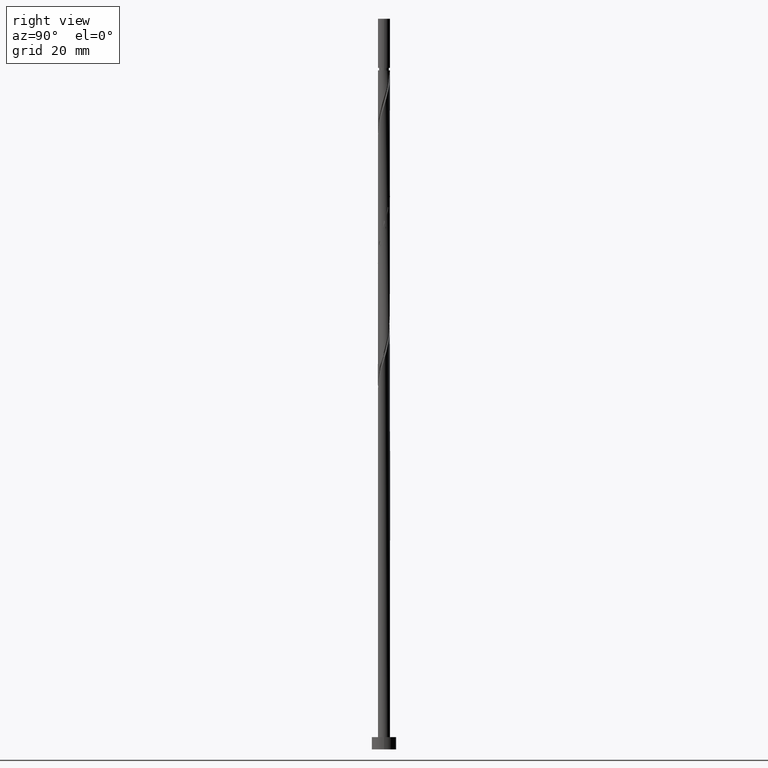
[diagram: clean part render]
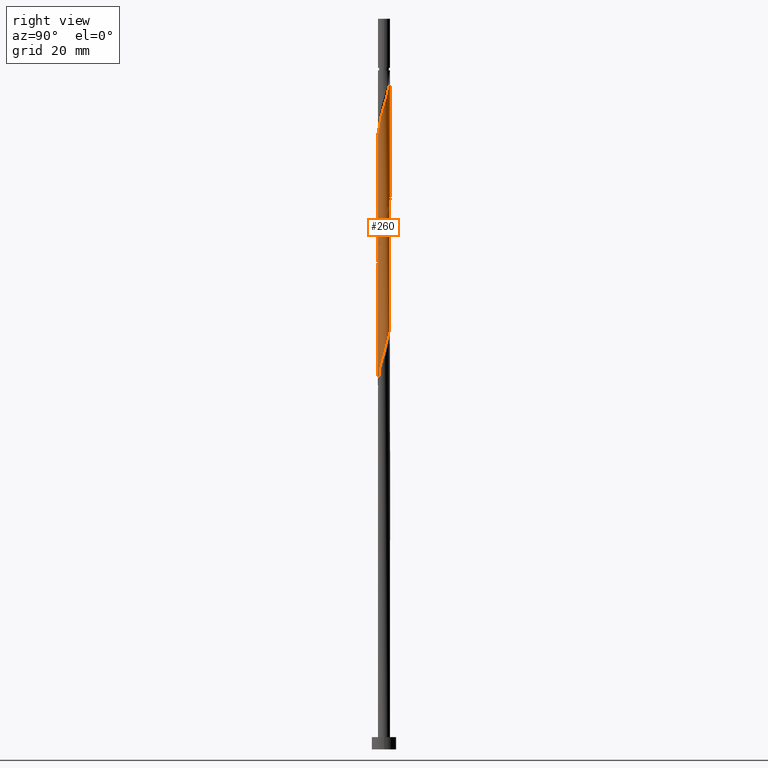
[diagram: same view with one face highlighted and labeled with its STEP entity id]
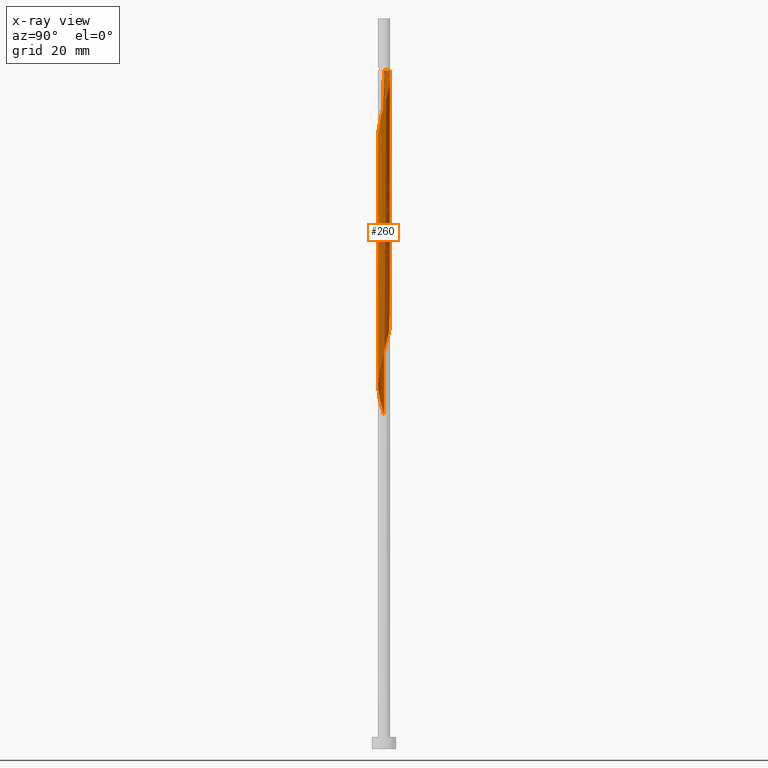
[diagram: x-ray of the same camera — body ghosted, the highlighted face saturated]
A machine part, right view. The second image highlights one B-rep face of the part: STEP entity #260.
The next image is the same camera in x-ray: the body ghosted, the highlighted face saturated — about 0% of this face is hidden behind the body in this view.
In plain terms, the highlighted cylindrical surface (bore or boss wall) has radius 1 mm, axis along (-0, -0, -1).
Its self-contained STEP definition (entity closure, byte-faithful):
#10 = EDGE_CURVE ( 'NONE', #894, #1417, #929, .T. ) ;
#11 = CARTESIAN_POINT ( 'NONE',  ( -0.5591360655683673686, 0.8440690085044264546, 72.49748367555909567 ) ) ;
#15 = CARTESIAN_POINT ( 'NONE',  ( -0.1989974874213231160, 0.9799999999999986500, 111.5599836755590388 ) ) ;
#16 = CARTESIAN_POINT ( 'NONE',  ( -0.4150371980848591158, -0.9098044428369606029, 99.05998367555905304 ) ) ;
#22 = CARTESIAN_POINT ( 'NONE',  ( -0.9484818943287861570, -0.3542142389393692636, 96.45581700889233900 ) ) ;
#25 = CARTESIAN_POINT ( 'NONE',  ( -0.8705417805181480118, 0.4920945116258615970, 74.05998367555908146 ) ) ;
#31 = CARTESIAN_POINT ( 'NONE',  ( 0.6299747843123535418, -0.7926016667075098665, 102.7058170088923532 ) ) ;
#38 = CARTESIAN_POINT ( 'NONE',  ( 0.6758688661379389506, 0.7370218964083899982, 108.4349836755590673 ) ) ;
#41 = CARTESIAN_POINT ( 'NONE',  ( -0.04378073590327794667, -1.011518105671216805, 80.83081700889236743 ) ) ;
#46 = CARTESIAN_POINT ( 'NONE',  ( -0.8440690085044264546, -0.5591360655683673686, 56.87248367555904593 ) ) ;
#48 = CARTESIAN_POINT ( 'NONE',  ( -1.000000000000001332, 1.799172333984669435E-16, 95.27018123408876704 ) ) ;
#70 = EDGE_CURVE ( 'NONE', #894, #650, #1370, .T. ) ;
#73 = ORIENTED_EDGE ( 'NONE', *, *, #138, .T. ) ;
#74 = CARTESIAN_POINT ( 'NONE',  ( -1.000000000000001554, 4.647861862793789565E-16, 54.93311945036264632 ) ) ;
#93 = CARTESIAN_POINT ( 'NONE',  ( 0.1989974874213238099, 0.9800000000000013145, 90.72665034222572444 ) ) ;
#121 = CARTESIAN_POINT ( 'NONE',  ( 0.1135787973490361563, -0.9935289914203557782, 81.35165034222572444 ) ) ;
#127 = CARTESIAN_POINT ( 'NONE',  ( 0.04378073590327780790, 1.011518105671216805, 70.41415034222571023 ) ) ;
#133 = CARTESIAN_POINT ( 'NONE',  ( 0.3542142389393692081, -0.9484818943287861570, 101.6641503422256818 ) ) ;
#138 = EDGE_CURVE ( 'NONE', #556, #308, #907, .T. ) ;
#139 = CARTESIAN_POINT ( 'NONE',  ( -0.6299747843123536528, -0.7926016667075100885, 78.74748367555903883 ) ) ;
#143 = CARTESIAN_POINT ( 'NONE',  ( 1.000000000000000000, 1.224646799147353207E-16, 120.0499999999999972 ) ) ;
#146 = CARTESIAN_POINT ( 'NONE',  ( 1.000000000000000888, -0.1005037815259241796, 85.84881487495476904 ) ) ;
#153 = CARTESIAN_POINT ( 'NONE',  ( -0.7926016667075100885, 0.6299747843123535418, 73.53915034222572444 ) ) ;
#161 = CARTESIAN_POINT ( 'NONE',  ( -0.9098044428369604919, -0.4150371980848587827, 56.35165034222571734 ) ) ;
#174 = ORIENTED_EDGE ( 'NONE', *, *, #541, .T. ) ;
#175 = VECTOR ( 'NONE', #367, 1000.000000000000000 ) ;
#197 = CARTESIAN_POINT ( 'NONE',  ( 0.3542142389393695412, 0.9484818943287857129, 90.20581700889239585 ) ) ;
#198 = ORIENTED_EDGE ( 'NONE', *, *, #70, .T. ) ;
#213 = CARTESIAN_POINT ( 'NONE',  ( 0.6299747843123538749, 0.7926016667075100885, 89.16415034222572444 ) ) ;
#226 = CARTESIAN_POINT ( 'NONE',  ( -0.5591360655683673686, 0.8440690085044264546, 93.33081700889235321 ) ) ;
#241 = CARTESIAN_POINT ( 'NONE',  ( 0.04378073590327762749, -1.011518105671216139, 100.6224836755590388 ) ) ;
#243 = CARTESIAN_POINT ( 'NONE',  ( 0.9484818943287857129, -0.3542142389393694857, 84.99748367555903883 ) ) ;
#249 = CARTESIAN_POINT ( 'NONE',  ( -1.000000000000000888, -0.1005037815259239159, 95.60448580949662301 ) ) ;
#252 = CARTESIAN_POINT ( 'NONE',  ( 0.7370218964083901092, 0.6758688661379386176, 67.80998367555905304 ) ) ;
#258 = CARTESIAN_POINT ( 'NONE',  ( 0.4150371980848592268, 0.9098044428369607139, 109.4766503422257102 ) ) ;
#260 = ADVANCED_FACE ( 'NONE', ( #1307 ), #1391, .T. ) ;
#265 = CARTESIAN_POINT ( 'NONE',  ( -0.1135787973490363922, -0.9935289914203560002, 100.1016503422257102 ) ) ;
#268 = CARTESIAN_POINT ( 'NONE',  ( 0.6758688661379386176, -0.7370218964083901092, 83.43498367555906725 ) ) ;
#271 = CARTESIAN_POINT ( 'NONE',  ( -1.000000000000000000, 0.000000000000000000, 120.0499999999999972 ) ) ;
#273 = CARTESIAN_POINT ( 'NONE',  ( -0.1989974874213237266, -0.9800000000000013145, 59.47665034222571734 ) ) ;
#298 = DIRECTION ( 'NONE',  ( -1.000000000000000000, 0.000000000000000000, 0.000000000000000000 ) ) ;
#301 = VERTEX_POINT ( 'NONE', #852 ) ;
#307 = CARTESIAN_POINT ( 'NONE',  ( 0.9098044428369607139, 0.4150371980848586717, 87.60165034222572444 ) ) ;
#308 = VERTEX_POINT ( 'NONE', #633 ) ;
#348 = CARTESIAN_POINT ( 'NONE',  ( 0.000000000000000000, 0.000000000000000000, 111.5599836755590388 ) ) ;
#350 = CARTESIAN_POINT ( 'NONE',  ( 1.000000000000001776, 0.05697373744643013938, 86.37263053956992565 ) ) ;
#360 = CARTESIAN_POINT ( 'NONE',  ( 0.6299747843123538749, 0.7926016667075100885, 68.33081700889239585 ) ) ;
#366 = CARTESIAN_POINT ( 'NONE',  ( 0.9935289914203555561, 0.1135787973490360869, 86.55998367555905304 ) ) ;
#367 = DIRECTION ( 'NONE',  ( -0.000000000000000000, -0.000000000000000000, -1.000000000000000000 ) ) ;
#376 = CARTESIAN_POINT ( 'NONE',  ( -0.9755398771694944182, -0.2709383306013502524, 76.66415034222571023 ) ) ;
#379 = CARTESIAN_POINT ( 'NONE',  ( 0.4920945116258615970, -0.8705417805181484558, 102.1849836755590673 ) ) ;
#401 = CARTESIAN_POINT ( 'NONE',  ( 0.9800000000000013145, -0.1989974874213237821, 64.68498367555903883 ) ) ;
#410 = CARTESIAN_POINT ( 'NONE',  ( -0.3542142389393694302, -0.9484818943287857129, 58.95581700889237453 ) ) ;
#431 = CARTESIAN_POINT ( 'NONE',  ( -0.9484818943287859350, 0.3542142389393693747, 95.41415034222572444 ) ) ;
#438 = CARTESIAN_POINT ( 'NONE',  ( 0.9755398771694946403, 0.2709383306013500858, 87.08081700889239585 ) ) ;
#449 = ORIENTED_EDGE ( 'NONE', *, *, #10, .F. ) ;
#470 = LINE ( 'NONE', #1049, #1099 ) ;
#474 = CARTESIAN_POINT ( 'NONE',  ( 0.8705417805181484558, 0.4920945116258615970, 107.3933170088924101 ) ) ;
#476 = CARTESIAN_POINT ( 'NONE',  ( -0.9484818943287859350, 0.3542142389393693747, 74.58081700889236743 ) ) ;
#480 = CARTESIAN_POINT ( 'NONE',  ( 0.7926016667075098665, 0.6299747843123535418, 107.9141503422256818 ) ) ;
#483 = CARTESIAN_POINT ( 'NONE',  ( 0.9755398771694946403, 0.2709383306013500858, 66.24748367555906725 ) ) ;
#485 = VECTOR ( 'NONE', #594, 1000.000000000000000 ) ;
#488 =( BOUNDED_CURVE ( )  B_SPLINE_CURVE ( 2, ( #1152, #146, #829, #243, #589, #1132, #268, #683, #606, #583, #121, #41, #1263, #577, #1145, #139, #1047, #1023, #690, #376, #1382, #936, #920, #476, #25, #153, #501, #11, #822, #1271, #909, #127, #1254, #491, #915, #360, #252, #714, #1372, #483, #930, #698, #401, #743, #1418, #1092, #848, #1424, #1294, #1395, #506, #942, #273, #410, #636, #534, #719, #46, #161, #1279, #628, #1076, #74 ),
 .UNSPECIFIED., .F., .T. ) 
 B_SPLINE_CURVE_WITH_KNOTS ( ( 3, 2, 2, 2, 2, 2, 2, 2, 2, 2, 2, 2, 2, 2, 2, 2, 2, 2, 2, 2, 2, 2, 2, 2, 2, 2, 2, 2, 2, 2, 2, 3 ),
 ( 0.5545322023138554712, 0.5625000000000000000, 0.5749999999999999556, 0.5875000000000000222, 0.5999999999999999778, 0.6125000000000000444, 0.6250000000000000000, 0.6374999999999999556, 0.6500000000000000222, 0.6624999999999999778, 0.6750000000000000444, 0.6875000000000000000, 0.6999999999999999556, 0.7125000000000000222, 0.7249999999999999778, 0.7375000000000000444, 0.7500000000000000000, 0.7624999999999999556, 0.7750000000000000222, 0.7874999999999999778, 0.8000000000000000444, 0.8125000000000000000, 0.8249999999999999556, 0.8375000000000000222, 0.8499999999999999778, 0.8625000000000000444, 0.8750000000000000000, 0.8874999999999999556, 0.9000000000000000222, 0.9124999999999999778, 0.9250000000000000444, 0.9295322023138552492 ),
 .UNSPECIFIED. ) 
 CURVE ( )  GEOMETRIC_REPRESENTATION_ITEM ( )  RATIONAL_B_SPLINE_CURVE ( ( 0.9039174447099368459, 0.9019565955404665880, 0.9090909090909147228, 0.8978984914501308978, 0.9090909090909147228, 0.8978984914501308978, 0.9090909090909147228, 0.8978984914501308978, 0.9090909090909147228, 0.8978984914501308978, 0.9090909090909147228, 0.8978984914501308978, 0.9090909090909147228, 0.8978984914501308978, 0.9090909090909147228, 0.8978984914501308978, 0.9090909090909147228, 0.8978984914501308978, 0.9090909090909147228, 0.8978984914501308978, 0.9090909090909147228, 0.8978984914501308978, 0.9090909090909147228, 0.8978984914501308978, 0.9090909090909147228, 0.8978984914501308978, 0.9090909090909147228, 0.8978984914501308978, 0.9090909090909147228, 0.8978984914501308978, 0.9090909090909147228, 0.8978984914501308978, 0.9090909090909147228, 0.8978984914501308978, 0.9090909090909147228, 0.8978984914501308978, 0.9090909090909147228, 0.8978984914501308978, 0.9090909090909147228, 0.8978984914501308978, 0.9090909090909147228, 0.8978984914501308978, 0.9090909090909147228, 0.8978984914501308978, 0.9090909090909147228, 0.8978984914501308978, 0.9090909090909147228, 0.8978984914501308978, 0.9090909090909147228, 0.8978984914501308978, 0.9090909090909147228, 0.8978984914501308978, 0.9090909090909147228, 0.8978984914501308978, 0.9090909090909147228, 0.8978984914501308978, 0.9090909090909147228, 0.8978984914501308978, 0.9090909090909147228, 0.8978984914501308978, 0.9090909090909147228, 0.9050328050005791436, 0.9039174447099369569 ) ) 
 REPRESENTATION_ITEM ( '' )  );
#489 = CARTESIAN_POINT ( 'NONE',  ( 0.9484818943287861570, 0.3542142389393690416, 106.8724836755589962 ) ) ;
#491 = CARTESIAN_POINT ( 'NONE',  ( 0.3542142389393695412, 0.9484818943287857129, 69.37248367555902462 ) ) ;
#501 = CARTESIAN_POINT ( 'NONE',  ( -0.6758688661379386176, 0.7370218964083901092, 73.01831700889239585 ) ) ;
#506 = CARTESIAN_POINT ( 'NONE',  ( 0.1135787973490361563, -0.9935289914203557782, 60.51831700889238164 ) ) ;
#515 = CIRCLE ( 'NONE', #1286, 0.9999999999999983347 ) ;
#534 = CARTESIAN_POINT ( 'NONE',  ( -0.6299747843123536528, -0.7926016667075100885, 57.91415034222571734 ) ) ;
#539 = ORIENTED_EDGE ( 'NONE', *, *, #1060, .F. ) ;
#541 = EDGE_CURVE ( 'NONE', #301, #1417, #515, .T. ) ;
#555 = CARTESIAN_POINT ( 'NONE',  ( 0.8440690085044265656, 0.5591360655683672576, 88.12248367555901041 ) ) ;
#556 = VERTEX_POINT ( 'NONE', #591 ) ;
#561 = CARTESIAN_POINT ( 'NONE',  ( -1.000000000000001110, 0.1005037815259216954, 96.26548154162146886 ) ) ;
#568 = CARTESIAN_POINT ( 'NONE',  ( -0.1135787973490362812, 0.9935289914203555561, 91.76831700889239585 ) ) ;
#575 = CARTESIAN_POINT ( 'NONE',  ( -0.7926016667075098665, -0.6299747843123536528, 97.49748367555902462 ) ) ;
#577 = CARTESIAN_POINT ( 'NONE',  ( -0.3542142389393694302, -0.9484818943287857129, 79.78915034222573865 ) ) ;
#581 = CARTESIAN_POINT ( 'NONE',  ( 1.000000000000001554, -5.922275599366281477E-16, 86.18311945036262500 ) ) ;
#583 = CARTESIAN_POINT ( 'NONE',  ( 0.2709383306013500858, -0.9755398771694944182, 81.87248367555906725 ) ) ;
#587 = CARTESIAN_POINT ( 'NONE',  ( 0.9098044428369606029, -0.4150371980848591158, 104.2683170088923958 ) ) ;
#589 = CARTESIAN_POINT ( 'NONE',  ( 0.8705417805181479007, -0.4920945116258617635, 84.47665034222572444 ) ) ;
#591 = CARTESIAN_POINT ( 'NONE',  ( 1.000000000000000000, 1.224646799147353207E-16, 111.5599836755590388 ) ) ;
#594 = DIRECTION ( 'NONE',  ( -0.000000000000000000, -0.000000000000000000, -1.000000000000000000 ) ) ;
#606 = CARTESIAN_POINT ( 'NONE',  ( 0.4150371980848587827, -0.9098044428369604919, 82.39331700889236743 ) ) ;
#609 = CARTESIAN_POINT ( 'NONE',  ( -1.000000000000001332, -4.497930834961730903E-17, 96.59978611702931062 ) ) ;
#623 = AXIS2_PLACEMENT_3D ( 'NONE', #731, #1082, #298 ) ;
#627 = EDGE_CURVE ( 'NONE', #301, #872, #470, .T. ) ;
#628 = CARTESIAN_POINT ( 'NONE',  ( -0.9935289914203557782, -0.1135787973490361980, 55.30998367555905304 ) ) ;
#633 = CARTESIAN_POINT ( 'NONE',  ( 1.000000000000001554, -5.922275599366280491E-16, 86.18311945036262500 ) ) ;
#636 = CARTESIAN_POINT ( 'NONE',  ( -0.4920945116258616525, -0.8705417805181480118, 58.43498367555903883 ) ) ;
#650 = VERTEX_POINT ( 'NONE', #1368 ) ;
#665 = ORIENTED_EDGE ( 'NONE', *, *, #138, .F. ) ;
#672 = CARTESIAN_POINT ( 'NONE',  ( -0.4150371980848588938, 0.9098044428369604919, 92.80998367555903883 ) ) ;
#683 = CARTESIAN_POINT ( 'NONE',  ( 0.5591360655683672576, -0.8440690085044265656, 82.91415034222575287 ) ) ;
#688 = CARTESIAN_POINT ( 'NONE',  ( 0.9755398771694944182, -0.2709383306013504189, 104.7891503422256960 ) ) ;
#690 = CARTESIAN_POINT ( 'NONE',  ( -0.9098044428369604919, -0.4150371980848587827, 77.18498367555905304 ) ) ;
#694 = CARTESIAN_POINT ( 'NONE',  ( -0.9800000000000017586, -0.1989974874213235601, 95.93498367555909567 ) ) ;
#698 = CARTESIAN_POINT ( 'NONE',  ( 1.011518105671216805, -0.04378073590327799525, 65.20581700889236743 ) ) ;
#701 = DIRECTION ( 'NONE',  ( -0.000000000000000000, -0.000000000000000000, -1.000000000000000000 ) ) ;
#711 = CARTESIAN_POINT ( 'NONE',  ( -0.2709383306013503079, -0.9755398771694944182, 99.58081700889233900 ) ) ;
#714 = CARTESIAN_POINT ( 'NONE',  ( 0.8440690085044265656, 0.5591360655683672576, 67.28915034222571023 ) ) ;
#719 = CARTESIAN_POINT ( 'NONE',  ( -0.7370218964083901092, -0.6758688661379386176, 57.39331700889238164 ) ) ;
#731 = CARTESIAN_POINT ( 'NONE',  ( 0.000000000000000000, 0.000000000000000000, 120.0499999999999972 ) ) ;
#743 = CARTESIAN_POINT ( 'NONE',  ( 0.9484818943287857129, -0.3542142389393694857, 64.16415034222572444 ) ) ;
#785 = CARTESIAN_POINT ( 'NONE',  ( -1.000000000000001332, -4.497930834961730903E-17, 96.59978611702931062 ) ) ;
#797 = DIRECTION ( 'NONE',  ( -0.000000000000000000, -0.000000000000000000, -1.000000000000000000 ) ) ;
#822 = CARTESIAN_POINT ( 'NONE',  ( -0.4150371980848588938, 0.9098044428369604919, 71.97665034222571023 ) ) ;
#826 = CARTESIAN_POINT ( 'NONE',  ( 0.7370218964083899982, -0.6758688661379389506, 103.2266503422257387 ) ) ;
#829 = CARTESIAN_POINT ( 'NONE',  ( 0.9800000000000013145, -0.1989974874213237821, 85.51831700889236743 ) ) ;
#832 = CARTESIAN_POINT ( 'NONE',  ( 0.2709383306013504189, 0.9755398771694944182, 109.9974836755590388 ) ) ;
#848 = CARTESIAN_POINT ( 'NONE',  ( 0.6758688661379386176, -0.7370218964083901092, 62.60165034222572444 ) ) ;
#852 = CARTESIAN_POINT ( 'NONE',  ( -0.9999999999999983347, 0.000000000000000000, 111.5599836755590388 ) ) ;
#872 = VERTEX_POINT ( 'NONE', #609 ) ;
#887 = ORIENTED_EDGE ( 'NONE', *, *, #1260, .F. ) ;
#893 = CARTESIAN_POINT ( 'NONE',  ( -0.8705417805181480118, 0.4920945116258615970, 94.89331700889239585 ) ) ;
#894 = VERTEX_POINT ( 'NONE', #48 ) ;
#907 = LINE ( 'NONE', #143, #485 ) ;
#909 = CARTESIAN_POINT ( 'NONE',  ( -0.1135787973490362812, 0.9935289914203555561, 70.93498367555905304 ) ) ;
#914 = CARTESIAN_POINT ( 'NONE',  ( 0.8440690085044261215, -0.5591360655683674796, 103.7474836755590104 ) ) ;
#915 = CARTESIAN_POINT ( 'NONE',  ( 0.4920945116258617635, 0.8705417805181479007, 68.85165034222569602 ) ) ;
#920 = CARTESIAN_POINT ( 'NONE',  ( -0.9800000000000013145, 0.1989974874213236433, 75.10165034222569602 ) ) ;
#925 = CARTESIAN_POINT ( 'NONE',  ( -0.8705417805181484558, -0.4920945116258615970, 96.97665034222572444 ) ) ;
#929 =( BOUNDED_CURVE ( )  B_SPLINE_CURVE ( 2, ( #1251, #249, #694, #22, #925, #575, #1142, #1028, #16, #711, #265, #241, #1135, #133, #379, #31, #826, #914, #587, #688, #1267, #1242, #1035, #489, #474, #480, #38, #1155, #258, #832, #1044, #1363, #1376 ),
 .UNSPECIFIED., .F., .T. ) 
 B_SPLINE_CURVE_WITH_KNOTS ( ( 3, 2, 2, 2, 2, 2, 2, 2, 2, 2, 2, 2, 2, 2, 2, 2, 3 ),
 ( 0.5545322023138554712, 0.5625000000000000000, 0.5749999999999999556, 0.5875000000000001332, 0.6000000000000000888, 0.6125000000000001554, 0.6250000000000001110, 0.6375000000000000666, 0.6500000000000001332, 0.6625000000000001998, 0.6750000000000002665, 0.6875000000000002220, 0.7000000000000001776, 0.7125000000000003553, 0.7250000000000003109, 0.7375000000000003775, 0.7500000000000003331 ),
 .UNSPECIFIED. ) 
 CURVE ( )  GEOMETRIC_REPRESENTATION_ITEM ( )  RATIONAL_B_SPLINE_CURVE ( ( 0.9039174447099482812, 0.9019565955404780233, 0.9090909090909261581, 0.8978984914501424441, 0.9090909090909261581, 0.8978984914501424441, 0.9090909090909261581, 0.8978984914501424441, 0.9090909090909261581, 0.8978984914501424441, 0.9090909090909261581, 0.8978984914501424441, 0.9090909090909261581, 0.8978984914501424441, 0.9090909090909261581, 0.8978984914501424441, 0.9090909090909261581, 0.8978984914501424441, 0.9090909090909261581, 0.8978984914501424441, 0.9090909090909261581, 0.8978984914501424441, 0.9090909090909261581, 0.8978984914501424441, 0.9090909090909261581, 0.8978984914501424441, 0.9090909090909261581, 0.8978984914501424441, 0.9090909090909261581, 0.8978984914501424441, 0.9090909090909261581, 0.8978984914501421111, 0.9090909090909264911 ) ) 
 REPRESENTATION_ITEM ( '' )  );
#930 = CARTESIAN_POINT ( 'NONE',  ( 0.9935289914203555561, 0.1135787973490360869, 65.72665034222572444 ) ) ;
#936 = CARTESIAN_POINT ( 'NONE',  ( -1.011518105671216805, 0.04378073590327787729, 75.62248367555905304 ) ) ;
#942 = CARTESIAN_POINT ( 'NONE',  ( -0.04378073590327794667, -1.011518105671216805, 59.99748367555906015 ) ) ;
#1001 = CARTESIAN_POINT ( 'NONE',  ( -0.9800000000000013145, 0.1989974874213236433, 95.93498367555905304 ) ) ;
#1011 = EDGE_LOOP ( 'NONE', ( #1108, #174, #449, #198, #539, #665, #73, #887 ) ) ;
#1023 = CARTESIAN_POINT ( 'NONE',  ( -0.8440690085044264546, -0.5591360655683673686, 77.70581700889236743 ) ) ;
#1028 = CARTESIAN_POINT ( 'NONE',  ( -0.5591360655683673686, -0.8440690085044261215, 98.53915034222569602 ) ) ;
#1035 = CARTESIAN_POINT ( 'NONE',  ( 0.9800000000000017586, 0.1989974874213234490, 106.3516503422257529 ) ) ;
#1044 = CARTESIAN_POINT ( 'NONE',  ( 0.1135787973490365449, 0.9935289914203560002, 110.5183170088924243 ) ) ;
#1047 = CARTESIAN_POINT ( 'NONE',  ( -0.7370218964083901092, -0.6758688661379386176, 78.22665034222572444 ) ) ;
#1049 = CARTESIAN_POINT ( 'NONE',  ( -1.000000000000000000, 0.000000000000000000, 120.0499999999999972 ) ) ;
#1060 = EDGE_CURVE ( 'NONE', #308, #650, #488, .T. ) ;
#1076 = CARTESIAN_POINT ( 'NONE',  ( -1.000000000000001332, -0.05697373744643302595, 55.12263053956992565 ) ) ;
#1082 = DIRECTION ( 'NONE',  ( -0.000000000000000000, -0.000000000000000000, -1.000000000000000000 ) ) ;
#1089 =( BOUNDED_CURVE ( )  B_SPLINE_CURVE ( 2, ( #785, #561, #1001, #431, #893, #1228, #1440, #226, #672, #1122, #568, #1213, #93, #197, #1454, #213, #1313, #555, #307, #438, #366, #350, #581 ),
 .UNSPECIFIED., .F., .T. ) 
 B_SPLINE_CURVE_WITH_KNOTS ( ( 3, 2, 2, 2, 2, 2, 2, 2, 2, 2, 2, 3 ),
 ( 0.4295322023138552492, 0.4375000000000000000, 0.4500000000000000111, 0.4625000000000000222, 0.4749999999999999778, 0.4874999999999999889, 0.5000000000000000000, 0.5124999999999999556, 0.5250000000000000222, 0.5374999999999999778, 0.5500000000000000444, 0.5545322023138554712 ),
 .UNSPECIFIED. ) 
 CURVE ( )  GEOMETRIC_REPRESENTATION_ITEM ( )  RATIONAL_B_SPLINE_CURVE ( ( 0.9039174447099370679, 0.9019565955404664770, 0.9090909090909147228, 0.8978984914501308978, 0.9090909090909147228, 0.8978984914501308978, 0.9090909090909147228, 0.8978984914501308978, 0.9090909090909147228, 0.8978984914501308978, 0.9090909090909147228, 0.8978984914501308978, 0.9090909090909147228, 0.8978984914501308978, 0.9090909090909147228, 0.8978984914501308978, 0.9090909090909147228, 0.8978984914501308978, 0.9090909090909147228, 0.8978984914501308978, 0.9090909090909147228, 0.9050328050005789216, 0.9039174447099368459 ) ) 
 REPRESENTATION_ITEM ( '' )  );
#1092 = CARTESIAN_POINT ( 'NONE',  ( 0.7926016667075100885, -0.6299747843123538749, 63.12248367555904593 ) ) ;
#1099 = VECTOR ( 'NONE', #797, 1000.000000000000000 ) ;
#1108 = ORIENTED_EDGE ( 'NONE', *, *, #627, .F. ) ;
#1122 = CARTESIAN_POINT ( 'NONE',  ( -0.2709383306013502524, 0.9755398771694944182, 92.28915034222571023 ) ) ;
#1132 = CARTESIAN_POINT ( 'NONE',  ( 0.7926016667075100885, -0.6299747843123538749, 83.95581700889236743 ) ) ;
#1135 = CARTESIAN_POINT ( 'NONE',  ( 0.1989974874213235045, -0.9800000000000017586, 101.1433170088924101 ) ) ;
#1142 = CARTESIAN_POINT ( 'NONE',  ( -0.6758688661379389506, -0.7370218964083899982, 98.01831700889241006 ) ) ;
#1145 = CARTESIAN_POINT ( 'NONE',  ( -0.4920945116258616525, -0.8705417805181480118, 79.26831700889242427 ) ) ;
#1152 = CARTESIAN_POINT ( 'NONE',  ( 1.000000000000001554, -5.922275599366281477E-16, 86.18311945036262500 ) ) ;
#1155 = CARTESIAN_POINT ( 'NONE',  ( 0.5591360655683674796, 0.8440690085044261215, 108.9558170088923674 ) ) ;
#1213 = CARTESIAN_POINT ( 'NONE',  ( 0.04378073590327780790, 1.011518105671216805, 91.24748367555905304 ) ) ;
#1228 = CARTESIAN_POINT ( 'NONE',  ( -0.7926016667075100885, 0.6299747843123535418, 94.37248367555905304 ) ) ;
#1233 = DIRECTION ( 'NONE',  ( -1.000000000000000000, 0.000000000000000000, 0.000000000000000000 ) ) ;
#1242 = CARTESIAN_POINT ( 'NONE',  ( 1.011518105671216139, 0.04378073590327757891, 105.8308170088923532 ) ) ;
#1251 = CARTESIAN_POINT ( 'NONE',  ( -1.000000000000001332, 1.799172333984669681E-16, 95.27018123408876704 ) ) ;
#1254 = CARTESIAN_POINT ( 'NONE',  ( 0.1989974874213238099, 0.9800000000000013145, 69.89331700889238164 ) ) ;
#1260 = EDGE_CURVE ( 'NONE', #872, #308, #1089, .T. ) ;
#1263 = CARTESIAN_POINT ( 'NONE',  ( -0.1989974874213237266, -0.9800000000000013145, 80.30998367555902462 ) ) ;
#1267 = CARTESIAN_POINT ( 'NONE',  ( 0.9935289914203560002, -0.1135787973490364755, 105.3099836755590815 ) ) ;
#1271 = CARTESIAN_POINT ( 'NONE',  ( -0.2709383306013502524, 0.9755398771694944182, 71.45581700889238164 ) ) ;
#1279 = CARTESIAN_POINT ( 'NONE',  ( -0.9755398771694944182, -0.2709383306013502524, 55.83081700889238874 ) ) ;
#1286 = AXIS2_PLACEMENT_3D ( 'NONE', #348, #701, #1233 ) ;
#1294 = CARTESIAN_POINT ( 'NONE',  ( 0.4150371980848587827, -0.9098044428369604919, 61.55998367555904593 ) ) ;
#1307 = FACE_OUTER_BOUND ( 'NONE', #1011, .T. ) ;
#1313 = CARTESIAN_POINT ( 'NONE',  ( 0.7370218964083901092, 0.6758688661379386176, 88.64331700889235321 ) ) ;
#1363 = CARTESIAN_POINT ( 'NONE',  ( -0.04378073590328177001, 1.011518105671216805, 111.0391503422256676 ) ) ;
#1368 = CARTESIAN_POINT ( 'NONE',  ( -1.000000000000001554, 4.647861862793789565E-16, 54.93311945036264632 ) ) ;
#1370 = LINE ( 'NONE', #271, #175 ) ;
#1372 = CARTESIAN_POINT ( 'NONE',  ( 0.9098044428369607139, 0.4150371980848586717, 66.76831700889239585 ) ) ;
#1376 = CARTESIAN_POINT ( 'NONE',  ( -0.1989974874213231160, 0.9799999999999986500, 111.5599836755590388 ) ) ;
#1382 = CARTESIAN_POINT ( 'NONE',  ( -0.9935289914203557782, -0.1135787973490361980, 76.14331700889239585 ) ) ;
#1391 = CYLINDRICAL_SURFACE ( 'NONE', #623, 1.000000000000000000 ) ;
#1395 = CARTESIAN_POINT ( 'NONE',  ( 0.2709383306013500858, -0.9755398771694944182, 61.03915034222570313 ) ) ;
#1417 = VERTEX_POINT ( 'NONE', #15 ) ;
#1418 = CARTESIAN_POINT ( 'NONE',  ( 0.8705417805181479007, -0.4920945116258617635, 63.64331700889238874 ) ) ;
#1424 = CARTESIAN_POINT ( 'NONE',  ( 0.5591360655683672576, -0.8440690085044265656, 62.08081700889237453 ) ) ;
#1440 = CARTESIAN_POINT ( 'NONE',  ( -0.6758688661379386176, 0.7370218964083901092, 93.85165034222568181 ) ) ;
#1454 = CARTESIAN_POINT ( 'NONE',  ( 0.4920945116258617635, 0.8705417805181479007, 89.68498367555906725 ) ) ;